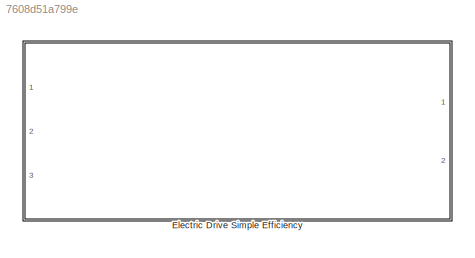
MODEL slx_7608d51a799e
KIND library
CONFIG AbsTol = auto
CONFIG EnableMultiTasking = off
CONFIG FixedStep = auto
CONFIG MaxStep = auto
CONFIG MinStep = auto
CONFIG RelTol = 1e-3
CONFIG SampleTimeConstraint = Unconstrained
CONFIG Solver = VariableStepAuto
CONFIG SolverName = VariableStepAuto
CONFIG StartTime = 0.0
CONFIG StopTime = 10.0
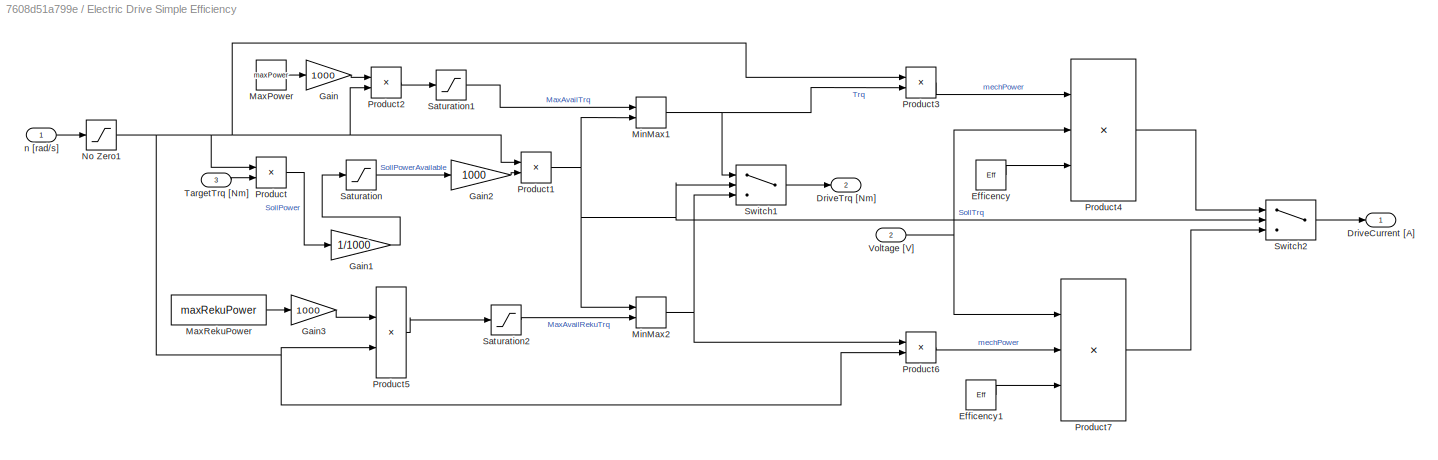
BLOCK [SubSystem] Electric Drive Simple Efficiency
  Ports = [3, 2]
  RequestExecContextInheritance = off
BLOCK [Outport] Electric Drive Simple Efficiency/DriveCurrent [A]
  IconDisplay = Port number
  SampleTime = GlobalSampleTime
BLOCK [Outport] Electric Drive Simple Efficiency/DriveTrq [Nm]
  IconDisplay = Port number
  Port = 2
  SampleTime = GlobalSampleTime
BLOCK [Constant] Electric Drive Simple Efficiency/Efficency
  Value = Eff
BLOCK [Constant] Electric Drive Simple Efficiency/Efficency1
  Value = Eff
BLOCK [Gain] Electric Drive Simple Efficiency/Gain
  Gain = 1000
  OutDataTypeStr = Inherit: Inherit via internal rule
  ParamDataTypeStr = Inherit: Inherit via internal rule
  SaturateOnIntegerOverflow = off
BLOCK [Gain] Electric Drive Simple Efficiency/Gain1
  Gain = 1/1000
  OutDataTypeStr = Inherit: Inherit via internal rule
  ParamDataTypeStr = Inherit: Inherit via internal rule
  SaturateOnIntegerOverflow = off
BLOCK [Gain] Electric Drive Simple Efficiency/Gain2
  Gain = 1000
  OutDataTypeStr = Inherit: Inherit via internal rule
  ParamDataTypeStr = Inherit: Inherit via internal rule
  SaturateOnIntegerOverflow = off
BLOCK [Gain] Electric Drive Simple Efficiency/Gain3
  Gain = 1000
  OutDataTypeStr = Inherit: Inherit via internal rule
  ParamDataTypeStr = Inherit: Inherit via internal rule
  SaturateOnIntegerOverflow = off
BLOCK [Constant] Electric Drive Simple Efficiency/MaxPower
  Value = maxPower
BLOCK [Constant] Electric Drive Simple Efficiency/MaxRekuPower
  Value = maxRekuPower
BLOCK [MinMax] Electric Drive Simple Efficiency/MinMax1
  InputSameDT = off
  Inputs = 2
  Ports = [2, 1]
  SaturateOnIntegerOverflow = off
BLOCK [MinMax] Electric Drive Simple Efficiency/MinMax2
  Function = max
  InputSameDT = off
  Inputs = 2
  Ports = [2, 1]
  SaturateOnIntegerOverflow = off
BLOCK [Saturate] Electric Drive Simple Efficiency/No Zero1
  InputPortMap = u0
  LowerLimit = 0.0001
  Ports = [1, 1]
  UpperLimit = inf
BLOCK [Product] Electric Drive Simple Efficiency/Product
  InputSameDT = off
  OutDataTypeStr = Inherit: Inherit via internal rule
  Ports = [2, 1]
  RndMeth = Floor
  SaturateOnIntegerOverflow = off
BLOCK [Product] Electric Drive Simple Efficiency/Product1
  InputSameDT = off
  Inputs = /*
  OutDataTypeStr = Inherit: Inherit via internal rule
  Ports = [2, 1]
  RndMeth = Floor
  SaturateOnIntegerOverflow = off
BLOCK [Product] Electric Drive Simple Efficiency/Product2
  InputSameDT = off
  Inputs = */
  OutDataTypeStr = Inherit: Inherit via internal rule
  Ports = [2, 1]
  RndMeth = Floor
  SaturateOnIntegerOverflow = off
BLOCK [Product] Electric Drive Simple Efficiency/Product3
  InputSameDT = off
  OutDataTypeStr = Inherit: Inherit via internal rule
  Ports = [2, 1]
  RndMeth = Floor
  SaturateOnIntegerOverflow = off
BLOCK [Product] Electric Drive Simple Efficiency/Product4
  InputSameDT = off
  Inputs = *//
  OutDataTypeStr = Inherit: Inherit via internal rule
  Ports = [3, 1]
  RndMeth = Floor
  SaturateOnIntegerOverflow = off
BLOCK [Product] Electric Drive Simple Efficiency/Product5
  InputSameDT = off
  Inputs = */
  OutDataTypeStr = Inherit: Inherit via internal rule
  Ports = [2, 1]
  RndMeth = Floor
  SaturateOnIntegerOverflow = off
BLOCK [Product] Electric Drive Simple Efficiency/Product6
  InputSameDT = off
  OutDataTypeStr = Inherit: Inherit via internal rule
  Ports = [2, 1]
  RndMeth = Floor
  SaturateOnIntegerOverflow = off
BLOCK [Product] Electric Drive Simple Efficiency/Product7
  InputSameDT = off
  Inputs = /**
  OutDataTypeStr = Inherit: Inherit via internal rule
  Ports = [3, 1]
  RndMeth = Floor
  SaturateOnIntegerOverflow = off
BLOCK [Saturate] Electric Drive Simple Efficiency/Saturation
  InputPortMap = u0
  LowerLimit = maxRekuPower
  Ports = [1, 1]
  UpperLimit = maxPower
BLOCK [Saturate] Electric Drive Simple Efficiency/Saturation1
  InputPortMap = u0
  LowerLimit = 0
  Ports = [1, 1]
  UpperLimit = MaxTrq
BLOCK [Saturate] Electric Drive Simple Efficiency/Saturation2
  InputPortMap = u0
  LowerLimit = -MaxTrq
  Ports = [1, 1]
  UpperLimit = 0
BLOCK [Switch] Electric Drive Simple Efficiency/Switch1
  InputSameDT = off
  SaturateOnIntegerOverflow = off
BLOCK [Switch] Electric Drive Simple Efficiency/Switch2
  InputSameDT = off
  SaturateOnIntegerOverflow = off
BLOCK [Inport] Electric Drive Simple Efficiency/TargetTrq [Nm]
  IconDisplay = Port number
  Port = 3
  SampleTime = LocalSampleTime
BLOCK [Inport] Electric Drive Simple Efficiency/Voltage [V]
  IconDisplay = Port number
  Port = 2
  SampleTime = LocalSampleTime
BLOCK [Inport] Electric Drive Simple Efficiency/n [rad//s]
  IconDisplay = Port number
  SampleTime = LocalSampleTime
LINE Electric Drive Simple Efficiency/Efficency1:1 -> Electric Drive Simple Efficiency/Product7:3
LINE Electric Drive Simple Efficiency/Efficency:1 -> Electric Drive Simple Efficiency/Product4:3
LINE Electric Drive Simple Efficiency/Gain1:1 -> Electric Drive Simple Efficiency/Saturation:1
LINE Electric Drive Simple Efficiency/Gain2:1 -> Electric Drive Simple Efficiency/Product1:2
LINE Electric Drive Simple Efficiency/Gain3:1 -> Electric Drive Simple Efficiency/Product5:1
LINE Electric Drive Simple Efficiency/Gain:1 -> Electric Drive Simple Efficiency/Product2:1
LINE Electric Drive Simple Efficiency/MaxPower:1 -> Electric Drive Simple Efficiency/Gain:1
LINE Electric Drive Simple Efficiency/MaxRekuPower:1 -> Electric Drive Simple Efficiency/Gain3:1
NET Electric Drive Simple Efficiency/MinMax1:1 -> Electric Drive Simple Efficiency/Product3:2, Electric Drive Simple Efficiency/Switch1:1
NET Electric Drive Simple Efficiency/MinMax2:1 -> Electric Drive Simple Efficiency/Product6:1, Electric Drive Simple Efficiency/Switch1:3
NET Electric Drive Simple Efficiency/No Zero1:1 -> Electric Drive Simple Efficiency/Product1:1, Electric Drive Simple Efficiency/Product2:2, Electric Drive Simple Efficiency/Product3:1, Electric Drive Simple Efficiency/Product5:2, Electric Drive Simple Efficiency/Product6:2, Electric Drive Simple Efficiency/Product:1
NET Electric Drive Simple Efficiency/Product1:1 -> Electric Drive Simple Efficiency/MinMax1:2, Electric Drive Simple Efficiency/MinMax2:1, Electric Drive Simple Efficiency/Switch1:2, Electric Drive Simple Efficiency/Switch2:2
LINE Electric Drive Simple Efficiency/Product2:1 -> Electric Drive Simple Efficiency/Saturation1:1
LINE Electric Drive Simple Efficiency/Product3:1 -> Electric Drive Simple Efficiency/Product4:1
LINE Electric Drive Simple Efficiency/Product4:1 -> Electric Drive Simple Efficiency/Switch2:1
LINE Electric Drive Simple Efficiency/Product5:1 -> Electric Drive Simple Efficiency/Saturation2:1
LINE Electric Drive Simple Efficiency/Product6:1 -> Electric Drive Simple Efficiency/Product7:2
LINE Electric Drive Simple Efficiency/Product7:1 -> Electric Drive Simple Efficiency/Switch2:3
LINE Electric Drive Simple Efficiency/Product:1 -> Electric Drive Simple Efficiency/Gain1:1
LINE Electric Drive Simple Efficiency/Saturation1:1 -> Electric Drive Simple Efficiency/MinMax1:1
LINE Electric Drive Simple Efficiency/Saturation2:1 -> Electric Drive Simple Efficiency/MinMax2:2
LINE Electric Drive Simple Efficiency/Saturation:1 -> Electric Drive Simple Efficiency/Gain2:1
LINE Electric Drive Simple Efficiency/Switch1:1 -> Electric Drive Simple Efficiency/DriveTrq [Nm]:1
LINE Electric Drive Simple Efficiency/Switch2:1 -> Electric Drive Simple Efficiency/DriveCurrent [A]:1
LINE Electric Drive Simple Efficiency/TargetTrq [Nm]:1 -> Electric Drive Simple Efficiency/Product:2
NET Electric Drive Simple Efficiency/Voltage [V]:1 -> Electric Drive Simple Efficiency/Product4:2, Electric Drive Simple Efficiency/Product7:1
LINE Electric Drive Simple Efficiency/n [rad//s]:1 -> Electric Drive Simple Efficiency/No Zero1:1
note: NET lines group one-source signal fan-out (src -> all destinations, sorted); 1:1 wires keep LINE
